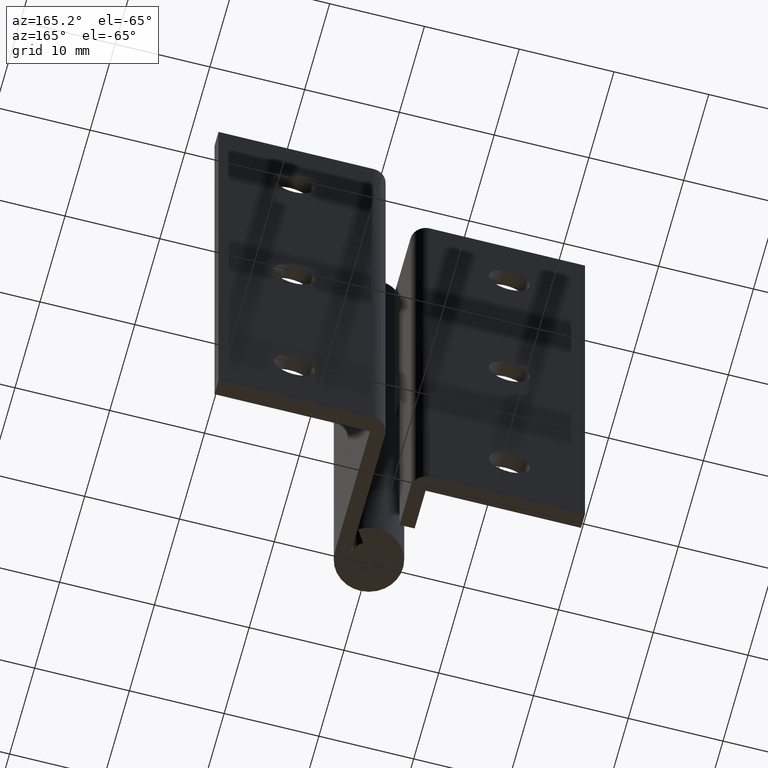
[diagram: clean part render]
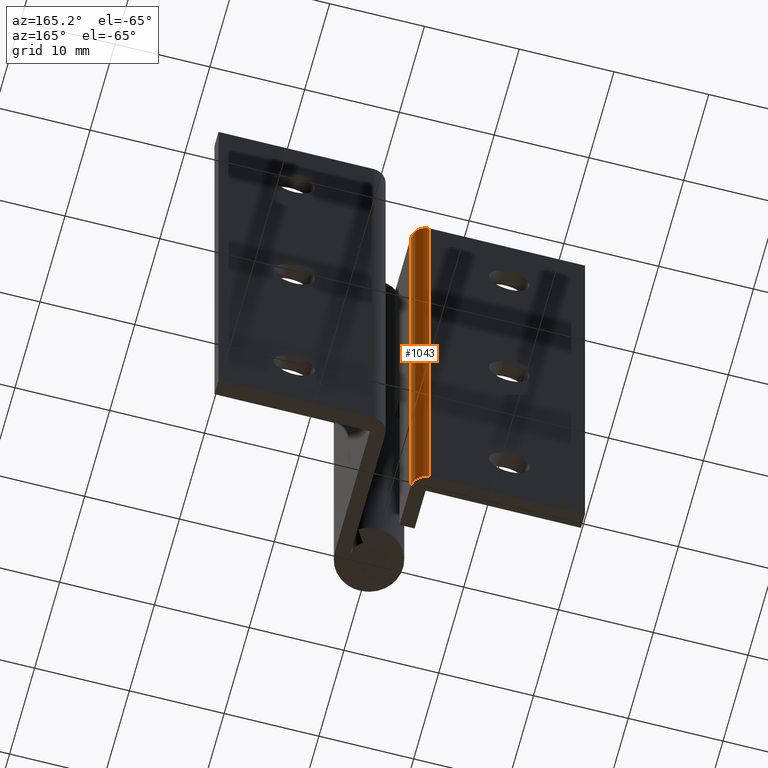
[diagram: same view with one face highlighted and labeled with its STEP entity id]
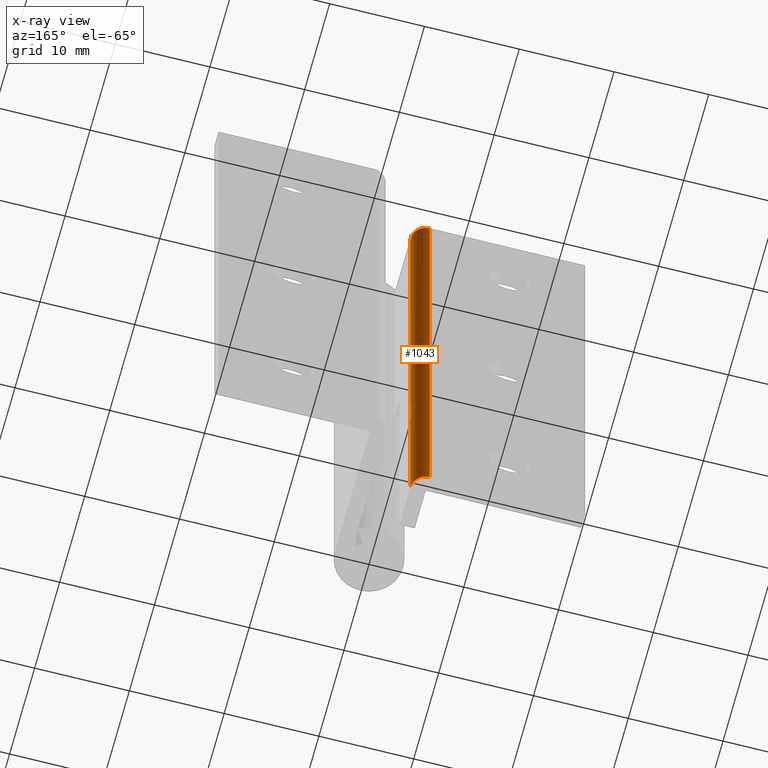
[diagram: x-ray of the same camera — body ghosted, the highlighted face saturated]
A machine part, auxiliary view. The second image highlights one B-rep face of the part: STEP entity #1043.
The next image is the same camera in x-ray: the body ghosted, the highlighted face saturated — about 0% of this face is hidden behind the body in this view.
In plain terms, the highlighted face is a freeform B-spline surface patch.
Its self-contained STEP definition (entity closure, byte-faithful):
#983=CARTESIAN_POINT('',(-3.641883117292498,10.599457719960890,-1.499999800000001));
#984=CARTESIAN_POINT('',(-3.641883117292498,10.599457719960890,61.537491795000001));
#985=CARTESIAN_POINT('',(-1.880023993787195,10.645593624784956,-1.499999800000003));
#986=CARTESIAN_POINT('',(-1.880023993787195,10.645593624784956,61.537491795000001));
#987=CARTESIAN_POINT('',(-2.003960853669086,8.887493585664481,-1.499999800000001));
#988=CARTESIAN_POINT('',(-2.003960853669086,8.887493585664481,61.537491795000001));
#996=(BOUNDED_SURFACE()B_SPLINE_SURFACE(1,2,((#983,#985,#987),(#984,#986,#988)),.UNSPECIFIED.,.F.,.F.,.U.)B_SPLINE_SURFACE_WITH_KNOTS((2,2),(3,3),(0.0,63.037491595000013),(0.0,2.833828102380370),.UNSPECIFIED.)GEOMETRIC_REPRESENTATION_ITEM()RATIONAL_B_SPLINE_SURFACE(((1.0,0.670944182388360,0.996392729248111),(1.0,0.670944182388360,0.996392729248111)))REPRESENTATION_ITEM('')SURFACE());
#997=CARTESIAN_POINT('',(-3.599999999999900,10.600006000000100,0.0));
#998=VERTEX_POINT('',#997);
#999=CARTESIAN_POINT('',(-1.999999999999900,9.000005999999999,0.0));
#1000=VERTEX_POINT('',#999);
#1001=CARTESIAN_POINT('',(-3.599999999999900,10.600006000000100,0.0));
#1002=CARTESIAN_POINT('',(-1.999999999999901,10.600005999999999,0.0));
#1003=CARTESIAN_POINT('',(-1.999999999999900,9.000005999999999,0.0));
#1011=(BOUNDED_CURVE()B_SPLINE_CURVE(2,(#1001,#1002,#1003),.UNSPECIFIED.,.F.,.U.)CURVE()GEOMETRIC_REPRESENTATION_ITEM()QUASI_UNIFORM_CURVE()RATIONAL_B_SPLINE_CURVE((1.0,0.707106781186548,1.0))REPRESENTATION_ITEM(''));
#1012=EDGE_CURVE('',#998,#1000,#1011,.T.);
#1013=ORIENTED_EDGE('',*,*,#1012,.F.);
#1014=CARTESIAN_POINT('',(-3.599999999999900,10.600006000000100,59.999991999999899));
#1015=VERTEX_POINT('',#1014);
#1016=CARTESIAN_POINT('',(-3.599999999999900,10.600006000000100,59.999991999999899));
#1017=CARTESIAN_POINT('',(-3.599999999999900,10.600006000000100,0.0));
#1018=QUASI_UNIFORM_CURVE('',1,(#1016,#1017),.UNSPECIFIED.,.F.,.U.);
#1019=EDGE_CURVE('',#1015,#998,#1018,.T.);
#1020=ORIENTED_EDGE('',*,*,#1019,.F.);
#1021=CARTESIAN_POINT('',(-1.999999999999900,9.000005999999999,59.999991999999899));
#1022=VERTEX_POINT('',#1021);
#1023=CARTESIAN_POINT('',(-1.999999999999900,9.000005999999999,59.999991999999999));
#1024=CARTESIAN_POINT('',(-1.999999999999901,10.600005999999999,59.999991999999992));
#1025=CARTESIAN_POINT('',(-3.599999999999900,10.600006000000100,59.999991999999899));
#1033=(BOUNDED_CURVE()B_SPLINE_CURVE(2,(#1023,#1024,#1025),.UNSPECIFIED.,.F.,.U.)CURVE()GEOMETRIC_REPRESENTATION_ITEM()QUASI_UNIFORM_CURVE()RATIONAL_B_SPLINE_CURVE((1.0,0.707106781186548,1.0))REPRESENTATION_ITEM(''));
#1034=EDGE_CURVE('',#1022,#1015,#1033,.T.);
#1035=ORIENTED_EDGE('',*,*,#1034,.F.);
#1036=CARTESIAN_POINT('',(-1.999999999999900,9.000005999999999,0.0));
#1037=CARTESIAN_POINT('',(-1.999999999999900,9.000005999999999,59.999991999999899));
#1038=QUASI_UNIFORM_CURVE('',1,(#1036,#1037),.UNSPECIFIED.,.F.,.U.);
#1039=EDGE_CURVE('',#1000,#1022,#1038,.T.);
#1040=ORIENTED_EDGE('',*,*,#1039,.F.);
#1041=EDGE_LOOP('',(#1013,#1020,#1035,#1040));
#1042=FACE_OUTER_BOUND('',#1041,.T.);
#1043=ADVANCED_FACE('',(#1042),#996,.T.);